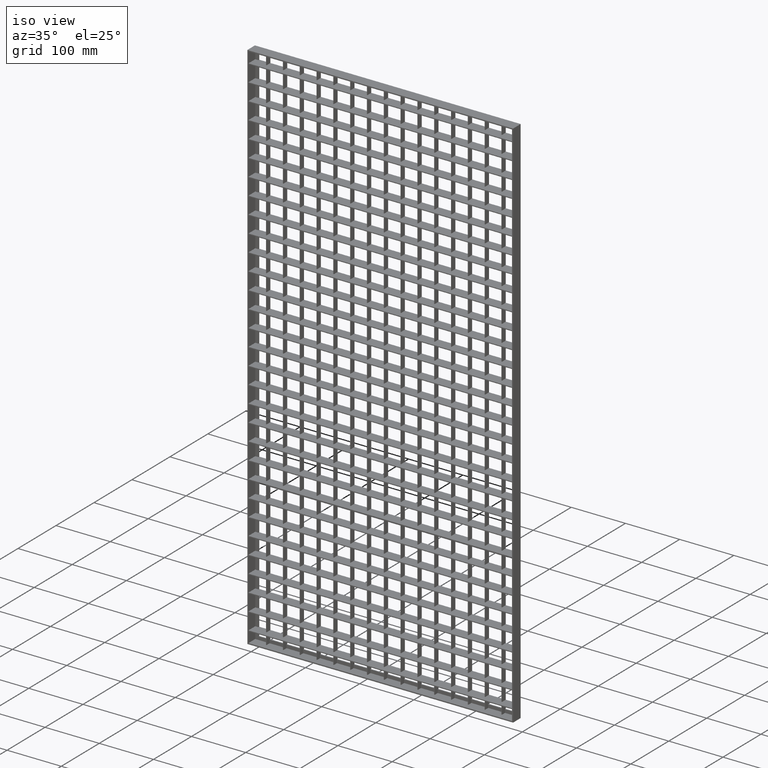
[diagram: clean part render]
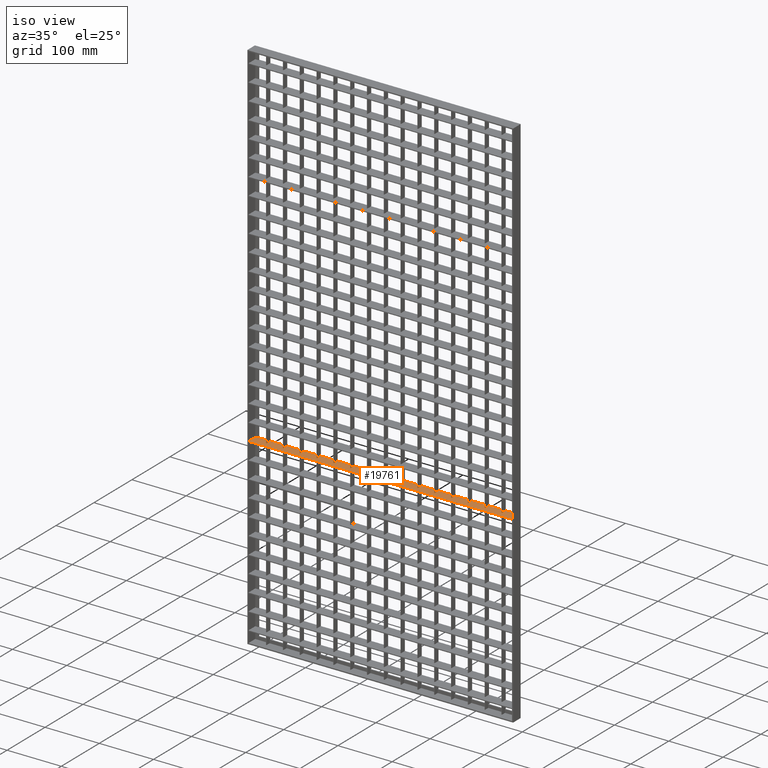
[diagram: same view with one face highlighted and labeled with its STEP entity id]
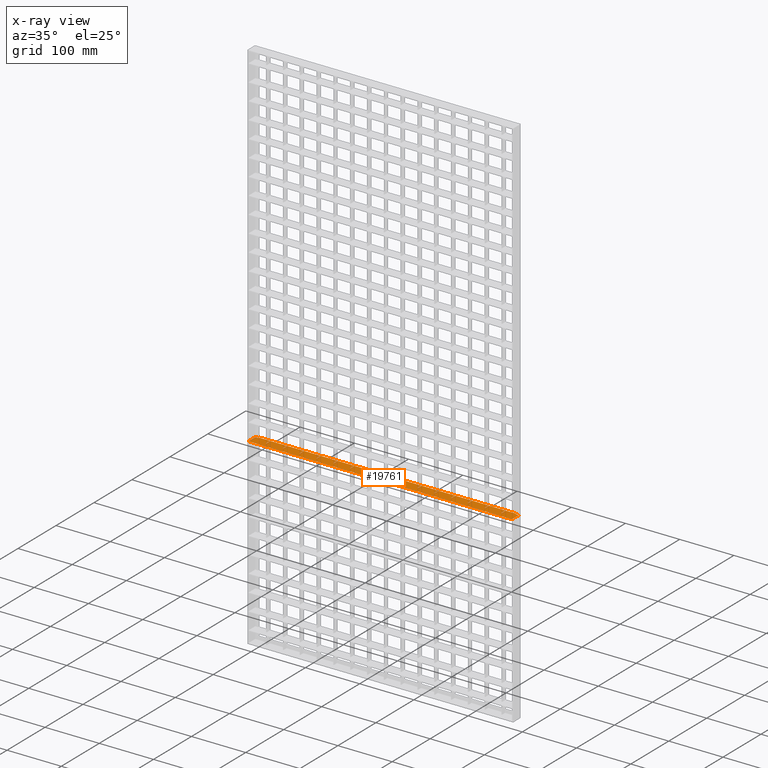
[diagram: x-ray of the same camera — body ghosted, the highlighted face saturated]
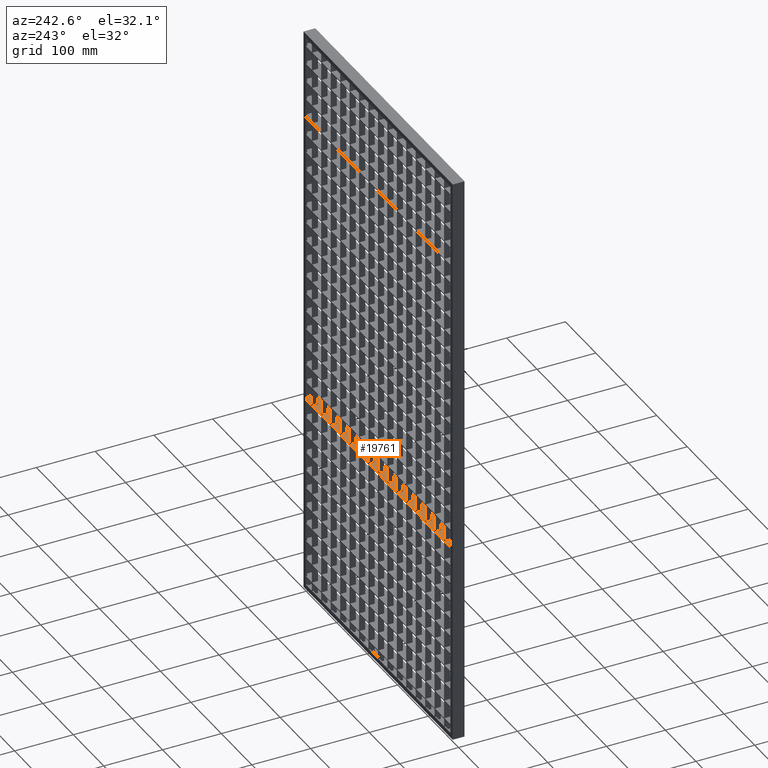
[diagram: same view with one face highlighted and labeled with its STEP entity id]
A machine part, iso view. The second image highlights one B-rep face of the part: STEP entity #19761.
The next image is the same camera in x-ray: the body ghosted, the highlighted face saturated — about 0% of this face is hidden behind the body in this view.
A second angle (auxiliary view) of the same face is appended — the face is thin or edge-on in the first view.
In plain terms, the highlighted planar face has unit normal (0, 0, -1).
Its self-contained STEP definition (entity closure, byte-faithful):
#49 = ORIENTED_EDGE ( 'NONE', *, *, #41829, .T. ) ;
#56 = ORIENTED_EDGE ( 'NONE', *, *, #2882, .F. ) ;
#94 = VERTEX_POINT ( 'NONE', #67276 ) ;
#197 = DIRECTION ( 'NONE',  ( -1.000000000000000000, -3.061616997868382600E-016, 0.0000000000000000000 ) ) ;
#408 = CARTESIAN_POINT ( 'NONE',  ( 508.0561711201315800, -9.999999999999849000, -651.7499999999997700 ) ) ;
#414 = VECTOR ( 'NONE', #57273, 1000.000000000000000 ) ;
#457 = VECTOR ( 'NONE', #65615, 1000.000000000000000 ) ;
#542 = ORIENTED_EDGE ( 'NONE', *, *, #64388, .T. ) ;
#579 = VECTOR ( 'NONE', #29431, 1000.000000000000000 ) ;
#656 = EDGE_CURVE ( 'NONE', #3270, #56879, #33934, .T. ) ;
#737 = CARTESIAN_POINT ( 'NONE',  ( 213.5000000000000300, -9.999999999999849000, -651.7499999999997700 ) ) ;
#844 = VECTOR ( 'NONE', #35367, 1000.000000000000000 ) ;
#906 = CARTESIAN_POINT ( 'NONE',  ( 400.4999999999999400, 10.00000000000012100, -651.7499999999997700 ) ) ;
#940 = CARTESIAN_POINT ( 'NONE',  ( 508.0561711201315800, 10.00000000000015500, -651.7499999999997700 ) ) ;
#1152 = CARTESIAN_POINT ( 'NONE',  ( 121.5000000000000000, 10.00000000000003700, -651.7499999999997700 ) ) ;
#1182 = DIRECTION ( 'NONE',  ( -1.000000000000000000, -3.061616997868382600E-016, 0.0000000000000000000 ) ) ;
#1608 = CARTESIAN_POINT ( 'NONE',  ( 276.4999999999999400, 1.504691907199150600E-015, -651.7499999999997700 ) ) ;
#1650 = DIRECTION ( 'NONE',  ( -1.000000000000000000, -3.061616997868382600E-016, 0.0000000000000000000 ) ) ;
#1669 = VERTEX_POINT ( 'NONE', #4351 ) ;
#1770 = VERTEX_POINT ( 'NONE', #5060 ) ;
#1832 = CARTESIAN_POINT ( 'NONE',  ( 508.0561711201315800, 10.00000000000015500, -651.7499999999997700 ) ) ;
#2134 = LINE ( 'NONE', #39005, #3844 ) ;
#2255 = ORIENTED_EDGE ( 'NONE', *, *, #6457, .F. ) ;
#2389 = ORIENTED_EDGE ( 'NONE', *, *, #54129, .T. ) ;
#2645 = VERTEX_POINT ( 'NONE', #7873 ) ;
#2682 = CARTESIAN_POINT ( 'NONE',  ( 338.5000000000000000, 1.604624756160052900E-015, -651.7499999999997700 ) ) ;
#2697 = VERTEX_POINT ( 'NONE', #57137 ) ;
#2770 = ORIENTED_EDGE ( 'NONE', *, *, #18818, .F. ) ;
#2882 = EDGE_CURVE ( 'NONE', #58044, #36544, #13924, .T. ) ;
#2937 = VERTEX_POINT ( 'NONE', #54906 ) ;
#2962 = CARTESIAN_POINT ( 'NONE',  ( 213.5000000000000000, 10.00000000000000200, -651.7499999999998900 ) ) ;
#3037 = CARTESIAN_POINT ( 'NONE',  ( 182.5000000000000000, -9.999999999999849000, -651.7499999999997700 ) ) ;
#3105 = CARTESIAN_POINT ( 'NONE',  ( 28.50000000000002500, 10.00000000000000700, -651.7499999999997700 ) ) ;
#3270 = VERTEX_POINT ( 'NONE', #19115 ) ;
#3499 = EDGE_CURVE ( 'NONE', #53414, #9156, #28377, .T. ) ;
#3586 = EDGE_CURVE ( 'NONE', #9834, #70583, #41275, .T. ) ;
#3686 = VECTOR ( 'NONE', #52085, 1000.000000000000000 ) ;
#3805 = CARTESIAN_POINT ( 'NONE',  ( 400.4999999999999400, 1.704557605120992000E-015, -651.7499999999997700 ) ) ;
#3844 = VECTOR ( 'NONE', #50285, 1000.000000000000000 ) ;
#3861 = ORIENTED_EDGE ( 'NONE', *, *, #57501, .F. ) ;
#4082 = ORIENTED_EDGE ( 'NONE', *, *, #7944, .T. ) ;
#4086 = VECTOR ( 'NONE', #63449, 1000.000000000000000 ) ;
#4249 = EDGE_CURVE ( 'NONE', #19711, #18649, #17971, .T. ) ;
#4254 = CARTESIAN_POINT ( 'NONE',  ( 152.4999999999999700, 1.734723475976807100E-015, -651.7499999999997700 ) ) ;
#4323 = EDGE_CURVE ( 'NONE', #36387, #65003, #54071, .T. ) ;
#4350 = LINE ( 'NONE', #50054, #43025 ) ;
#4351 = CARTESIAN_POINT ( 'NONE',  ( 482.0000000000001700, 10.00000000000000200, -651.7499999999997700 ) ) ;
#4388 = CARTESIAN_POINT ( 'NONE',  ( 508.0561711201315800, -1.214306433183765000E-014, -651.7499999999997700 ) ) ;
#4545 = EDGE_CURVE ( 'NONE', #43876, #16448, #7603, .T. ) ;
#4587 = VERTEX_POINT ( 'NONE', #55315 ) ;
#4767 = VECTOR ( 'NONE', #14662, 1000.000000000000000 ) ;
#4768 = DIRECTION ( 'NONE',  ( 0.0000000000000000000, 1.000000000000000000, 0.0000000000000000000 ) ) ;
#4980 = CARTESIAN_POINT ( 'NONE',  ( 245.5000000000000000, 1.734723475976807100E-015, -651.7499999999997700 ) ) ;
#5060 = CARTESIAN_POINT ( 'NONE',  ( 488.0000000000000600, -10.00000000000000500, -651.7499999999997700 ) ) ;
#5151 = CARTESIAN_POINT ( 'NONE',  ( 508.0561711201315800, -3.122502256758252800E-014, -651.7499999999997700 ) ) ;
#5252 = VECTOR ( 'NONE', #15541, 1000.000000000000000 ) ;
#5273 = LINE ( 'NONE', #16511, #50900 ) ;
#5381 = EDGE_CURVE ( 'NONE', #1770, #46114, #51427, .T. ) ;
#5401 = LINE ( 'NONE', #29801, #69891 ) ;
#5755 = DIRECTION ( 'NONE',  ( 0.0000000000000000000, 1.000000000000000000, 0.0000000000000000000 ) ) ;
#5880 = ORIENTED_EDGE ( 'NONE', *, *, #57708, .F. ) ;
#5925 = VERTEX_POINT ( 'NONE', #57547 ) ;
#5991 = VERTEX_POINT ( 'NONE', #29462 ) ;
#6221 = EDGE_CURVE ( 'NONE', #42467, #60410, #32332, .T. ) ;
#6393 = DIRECTION ( 'NONE',  ( 0.0000000000000000000, 0.0000000000000000000, -1.000000000000000000 ) ) ;
#6457 = EDGE_CURVE ( 'NONE', #35968, #30159, #70091, .T. ) ;
#6461 = LINE ( 'NONE', #67410, #28814 ) ;
#6496 = LINE ( 'NONE', #34945, #58089 ) ;
#6578 = LINE ( 'NONE', #36191, #23787 ) ;
#6874 = EDGE_CURVE ( 'NONE', #31549, #9834, #21908, .T. ) ;
#7119 = CARTESIAN_POINT ( 'NONE',  ( 275.4999999999999400, 2.229774192431455100E-015, -651.7499999999998900 ) ) ;
#7399 = CARTESIAN_POINT ( 'NONE',  ( 58.50000000000000000, 10.00000000000000200, -651.7499999999997700 ) ) ;
#7603 = LINE ( 'NONE', #12053, #18891 ) ;
#7717 = EDGE_CURVE ( 'NONE', #16448, #51883, #2134, .T. ) ;
#7873 = CARTESIAN_POINT ( 'NONE',  ( 369.5000000000000600, 7.872294426520972900E-016, -651.7499999999997700 ) ) ;
#7892 = ORIENTED_EDGE ( 'NONE', *, *, #54475, .T. ) ;
#7908 = VERTEX_POINT ( 'NONE', #39951 ) ;
#7944 = EDGE_CURVE ( 'NONE', #71323, #31109, #14159, .T. ) ;
#8235 = VERTEX_POINT ( 'NONE', #65878 ) ;
#8405 = DIRECTION ( 'NONE',  ( 0.0000000000000000000, -1.000000000000000000, 0.0000000000000000000 ) ) ;
#8762 = CARTESIAN_POINT ( 'NONE',  ( 2.000000000000003600, 8.000000000000001800, -651.7499999999997700 ) ) ;
#9156 = VERTEX_POINT ( 'NONE', #35441 ) ;
#9207 = CARTESIAN_POINT ( 'NONE',  ( 482.0000000000001100, 8.000000000000001800, -651.7499999999997700 ) ) ;
#9472 = DIRECTION ( 'NONE',  ( 1.000000000000000000, -3.061616997868381200E-016, 0.0000000000000000000 ) ) ;
#9539 = CARTESIAN_POINT ( 'NONE',  ( 461.5000000000000000, 2.229774192431455100E-015, -651.7499999999997700 ) ) ;
#9548 = VERTEX_POINT ( 'NONE', #23394 ) ;
#9561 = VECTOR ( 'NONE', #68708, 1000.000000000000000 ) ;
#9706 = ORIENTED_EDGE ( 'NONE', *, *, #15744, .T. ) ;
#9762 = LINE ( 'NONE', #66533, #40718 ) ;
#9798 = EDGE_CURVE ( 'NONE', #71241, #71149, #62011, .T. ) ;
#9834 = VERTEX_POINT ( 'NONE', #47608 ) ;
#9939 = DIRECTION ( 'NONE',  ( 1.000000000000000000, -3.061616997868381700E-016, 0.0000000000000000000 ) ) ;
#10023 = EDGE_CURVE ( 'NONE', #71149, #57748, #58475, .T. ) ;
#10396 = LINE ( 'NONE', #60735, #41351 ) ;
#10397 = CARTESIAN_POINT ( 'NONE',  ( 182.5000000000000000, 10.00000000000000200, -651.7499999999998900 ) ) ;
#10569 = LINE ( 'NONE', #51689, #18323 ) ;
#10654 = VECTOR ( 'NONE', #40883, 1000.000000000000000 ) ;
#11175 = LINE ( 'NONE', #31668, #67964 ) ;
#11252 = ORIENTED_EDGE ( 'NONE', *, *, #46448, .T. ) ;
#11351 = ORIENTED_EDGE ( 'NONE', *, *, #5381, .T. ) ;
#11572 = LINE ( 'NONE', #18864, #414 ) ;
#11573 = DIRECTION ( 'NONE',  ( -1.000000000000000000, -3.061616997868381700E-016, 0.0000000000000000000 ) ) ;
#11612 = LINE ( 'NONE', #47768, #27965 ) ;
#11929 = DIRECTION ( 'NONE',  ( -1.000000000000000000, 0.0000000000000000000, -0.0000000000000000000 ) ) ;
#11980 = CARTESIAN_POINT ( 'NONE',  ( 508.0561711201315800, 10.00000000000015500, -651.7499999999997700 ) ) ;
#12053 = CARTESIAN_POINT ( 'NONE',  ( 508.0561711201315800, 1.491862189340054100E-013, -651.7499999999997700 ) ) ;
#12121 = VECTOR ( 'NONE', #48372, 1000.000000000000000 ) ;
#12226 = ORIENTED_EDGE ( 'NONE', *, *, #55352, .T. ) ;
#12233 = CARTESIAN_POINT ( 'NONE',  ( 244.5000000000000000, 8.411980314596704500E-016, -651.7499999999997700 ) ) ;
#12334 = CARTESIAN_POINT ( 'NONE',  ( 183.5000000000000600, 10.00000000000005500, -651.7499999999997700 ) ) ;
#12458 = LINE ( 'NONE', #408, #67502 ) ;
#12467 = LINE ( 'NONE', #13581, #68328 ) ;
#12667 = ORIENTED_EDGE ( 'NONE', *, *, #14696, .T. ) ;
#12709 = CARTESIAN_POINT ( 'NONE',  ( 462.5000000000000000, 10.00000000000014000, -651.7499999999997700 ) ) ;
#12710 = CARTESIAN_POINT ( 'NONE',  ( 2.000000000000003600, -10.00000000000000000, -651.7499999999997700 ) ) ;
#12767 = LINE ( 'NONE', #940, #46262 ) ;
#12937 = CARTESIAN_POINT ( 'NONE',  ( 508.0561711201315800, -6.938893903907228400E-014, -651.7499999999997700 ) ) ;
#13001 = DIRECTION ( 'NONE',  ( 0.0000000000000000000, -1.000000000000000000, 0.0000000000000000000 ) ) ;
#13094 = EDGE_CURVE ( 'NONE', #65624, #48630, #42959, .T. ) ;
#13421 = CARTESIAN_POINT ( 'NONE',  ( 462.5000000000000000, -9.999999999999849000, -651.7499999999997700 ) ) ;
#13549 = VECTOR ( 'NONE', #39194, 1000.000000000000000 ) ;
#13581 = CARTESIAN_POINT ( 'NONE',  ( 508.0561711201315800, 1.006139616066548100E-013, -651.7499999999997700 ) ) ;
#13882 = ORIENTED_EDGE ( 'NONE', *, *, #13094, .F. ) ;
#13894 = ORIENTED_EDGE ( 'NONE', *, *, #45737, .F. ) ;
#13924 = LINE ( 'NONE', #5151, #5252 ) ;
#14155 = EDGE_CURVE ( 'NONE', #2645, #94, #57419, .T. ) ;
#14159 = LINE ( 'NONE', #62806, #43337 ) ;
#14223 = CARTESIAN_POINT ( 'NONE',  ( 27.49999999999996800, 2.058324740811253300E-015, -651.7499999999997700 ) ) ;
#14298 = DIRECTION ( 'NONE',  ( 1.000000000000000000, 0.0000000000000000000, 0.0000000000000000000 ) ) ;
#14365 = DIRECTION ( 'NONE',  ( -1.000000000000000000, -3.061616997868381700E-016, 0.0000000000000000000 ) ) ;
#14630 = VECTOR ( 'NONE', #9472, 1000.000000000000000 ) ;
#14662 = DIRECTION ( 'NONE',  ( 0.0000000000000000000, -1.000000000000000000, 0.0000000000000000000 ) ) ;
#14683 = LINE ( 'NONE', #60362, #43878 ) ;
#14696 = EDGE_CURVE ( 'NONE', #16843, #31549, #48707, .T. ) ;
#14809 = CARTESIAN_POINT ( 'NONE',  ( 368.5000000000000600, -9.999999999999849000, -651.7499999999997700 ) ) ;
#14915 = VECTOR ( 'NONE', #34669, 1000.000000000000000 ) ;
#14999 = VECTOR ( 'NONE', #39768, 1000.000000000000000 ) ;
#15020 = CARTESIAN_POINT ( 'NONE',  ( 89.49999999999997200, 1.958391891850345000E-015, -651.7499999999997700 ) ) ;
#15053 = CARTESIAN_POINT ( 'NONE',  ( 182.4999999999999400, 9.411308804205788300E-016, -651.7499999999997700 ) ) ;
#15332 = CARTESIAN_POINT ( 'NONE',  ( 151.4999999999999700, 1.858459042889448800E-015, -651.7499999999997700 ) ) ;
#15447 = CARTESIAN_POINT ( 'NONE',  ( 213.4999999999999700, 1.758526193928528200E-015, -651.7499999999997700 ) ) ;
#15541 = DIRECTION ( 'NONE',  ( 1.000000000000000000, -3.061616997868381700E-016, 0.0000000000000000000 ) ) ;
#15744 = EDGE_CURVE ( 'NONE', #29723, #60359, #12467, .T. ) ;
#15875 = EDGE_CURVE ( 'NONE', #30159, #3270, #70875, .T. ) ;
#15971 = EDGE_CURVE ( 'NONE', #40848, #46114, #21855, .T. ) ;
#16185 = ORIENTED_EDGE ( 'NONE', *, *, #4323, .F. ) ;
#16431 = CARTESIAN_POINT ( 'NONE',  ( 461.5000000000000000, -9.999999999999849000, -651.7499999999997700 ) ) ;
#16448 = VERTEX_POINT ( 'NONE', #14223 ) ;
#16511 = CARTESIAN_POINT ( 'NONE',  ( 508.0561711201315800, -6.071532165918824800E-014, -651.7499999999997700 ) ) ;
#16843 = VERTEX_POINT ( 'NONE', #1152 ) ;
#16855 = VERTEX_POINT ( 'NONE', #906 ) ;
#16886 = CARTESIAN_POINT ( 'NONE',  ( 7.999999999999996400, 8.000000000000001800, -651.7499999999997700 ) ) ;
#17221 = CARTESIAN_POINT ( 'NONE',  ( 399.4999999999999400, 2.229774192431455100E-015, -651.7499999999997700 ) ) ;
#17291 = CARTESIAN_POINT ( 'NONE',  ( 27.49999999999999600, 10.00000000000000200, -651.7499999999997700 ) ) ;
#17397 = ORIENTED_EDGE ( 'NONE', *, *, #54026, .T. ) ;
#17419 = ORIENTED_EDGE ( 'NONE', *, *, #59644, .T. ) ;
#17570 = LINE ( 'NONE', #23450, #14999 ) ;
#17712 = VECTOR ( 'NONE', #49097, 1000.000000000000000 ) ;
#17906 = DIRECTION ( 'NONE',  ( -1.000000000000000000, -3.061616997868381200E-016, 0.0000000000000000000 ) ) ;
#17971 = LINE ( 'NONE', #12937, #42865 ) ;
#18118 = LINE ( 'NONE', #29133, #33550 ) ;
#18323 = VECTOR ( 'NONE', #57919, 1000.000000000000000 ) ;
#18363 = DIRECTION ( 'NONE',  ( -1.000000000000000000, -3.061616997868382600E-016, 0.0000000000000000000 ) ) ;
#18382 = VERTEX_POINT ( 'NONE', #9539 ) ;
#18527 = CARTESIAN_POINT ( 'NONE',  ( 431.5000000000000000, -9.999999999999849000, -651.7499999999997700 ) ) ;
#18649 = VERTEX_POINT ( 'NONE', #1608 ) ;
#18818 = EDGE_CURVE ( 'NONE', #42467, #47853, #31281, .T. ) ;
#18864 = CARTESIAN_POINT ( 'NONE',  ( 338.5000000000000000, -9.999999999999849000, -651.7499999999997700 ) ) ;
#18891 = VECTOR ( 'NONE', #11573, 1000.000000000000000 ) ;
#18968 = DIRECTION ( 'NONE',  ( 0.0000000000000000000, 1.000000000000000000, 0.0000000000000000000 ) ) ;
#19115 = CARTESIAN_POINT ( 'NONE',  ( 7.999999999999996400, 8.000000000000001800, -651.7499999999997700 ) ) ;
#19132 = DIRECTION ( 'NONE',  ( -1.000000000000000000, -3.061616997868381200E-016, 0.0000000000000000000 ) ) ;
#19172 = CARTESIAN_POINT ( 'NONE',  ( 337.5000000000000000, 2.229774192431455100E-015, -651.7499999999998900 ) ) ;
#19276 = VERTEX_POINT ( 'NONE', #3105 ) ;
#19528 = VECTOR ( 'NONE', #60279, 1000.000000000000000 ) ;
#19640 = EDGE_CURVE ( 'NONE', #68021, #19276, #28583, .T. ) ;
#19689 = CARTESIAN_POINT ( 'NONE',  ( 508.0561711201315800, 10.00000000000015500, -651.7499999999997700 ) ) ;
#19711 = VERTEX_POINT ( 'NONE', #7119 ) ;
#19728 = ORIENTED_EDGE ( 'NONE', *, *, #24899, .F. ) ;
#19761 = ADVANCED_FACE ( 'NONE', ( #48287 ), #22755, .F. ) ;
#20169 = VECTOR ( 'NONE', #9939, 1000.000000000000000 ) ;
#20243 = VECTOR ( 'NONE', #30711, 1000.000000000000000 ) ;
#20360 = CARTESIAN_POINT ( 'NONE',  ( 488.0000000000000600, 8.000000000000001800, -651.7499999999997700 ) ) ;
#20697 = ORIENTED_EDGE ( 'NONE', *, *, #64916, .T. ) ;
#20794 = DIRECTION ( 'NONE',  ( 0.0000000000000000000, 1.000000000000000000, 0.0000000000000000000 ) ) ;
#21066 = ORIENTED_EDGE ( 'NONE', *, *, #58885, .T. ) ;
#21184 = VECTOR ( 'NONE', #62288, 1000.000000000000000 ) ;
#21467 = CARTESIAN_POINT ( 'NONE',  ( 151.4999999999999700, -9.999999999999849000, -651.7499999999997700 ) ) ;
#21574 = DIRECTION ( 'NONE',  ( -1.000000000000000000, -3.061616997868382600E-016, 0.0000000000000000000 ) ) ;
#21608 = EDGE_CURVE ( 'NONE', #50150, #71323, #38632, .T. ) ;
#21636 = ORIENTED_EDGE ( 'NONE', *, *, #15971, .F. ) ;
#21665 = ORIENTED_EDGE ( 'NONE', *, *, #61967, .T. ) ;
#21712 = VECTOR ( 'NONE', #61930, 1000.000000000000000 ) ;
#21820 = DIRECTION ( 'NONE',  ( -1.000000000000000000, -3.061616997868382600E-016, 0.0000000000000000000 ) ) ;
#21855 = LINE ( 'NONE', #59914, #35635 ) ;
#21908 = LINE ( 'NONE', #48470, #29640 ) ;
#21954 = CARTESIAN_POINT ( 'NONE',  ( 508.0561711201315800, 10.00000000000015500, -651.7499999999997700 ) ) ;
#22333 = LINE ( 'NONE', #21954, #46390 ) ;
#22578 = EDGE_CURVE ( 'NONE', #63887, #4587, #33277, .T. ) ;
#22666 = CARTESIAN_POINT ( 'NONE',  ( 151.5000000000000000, 10.00000000000000200, -651.7499999999998900 ) ) ;
#22755 = PLANE ( 'NONE',  #70855 ) ;
#23187 = CARTESIAN_POINT ( 'NONE',  ( 89.50000000000000000, 10.00000000000000200, -651.7499999999997700 ) ) ;
#23219 = LINE ( 'NONE', #68307, #844 ) ;
#23292 = VERTEX_POINT ( 'NONE', #24539 ) ;
#23310 = CARTESIAN_POINT ( 'NONE',  ( 121.5000000000000000, 1.734723475976807100E-015, -651.7499999999997700 ) ) ;
#23394 = CARTESIAN_POINT ( 'NONE',  ( 306.5000000000000000, 2.229774192431455100E-015, -651.7499999999998900 ) ) ;
#23450 = CARTESIAN_POINT ( 'NONE',  ( 508.0561711201315800, 1.110223024625156500E-013, -651.7499999999997700 ) ) ;
#23633 = ORIENTED_EDGE ( 'NONE', *, *, #28353, .F. ) ;
#23771 = CARTESIAN_POINT ( 'NONE',  ( 508.0561711201315800, 10.00000000000015500, -651.7499999999997700 ) ) ;
#23787 = VECTOR ( 'NONE', #14365, 1000.000000000000000 ) ;
#23794 = CARTESIAN_POINT ( 'NONE',  ( 462.5000000000000000, 1.804490454081884800E-015, -651.7499999999997700 ) ) ;
#24391 = CARTESIAN_POINT ( 'NONE',  ( 275.4999999999999400, 10.00000000000008300, -651.7499999999997700 ) ) ;
#24471 = VECTOR ( 'NONE', #52322, 1000.000000000000000 ) ;
#24489 = DIRECTION ( 'NONE',  ( 1.000000000000000000, -3.061616997868381200E-016, 0.0000000000000000000 ) ) ;
#24539 = CARTESIAN_POINT ( 'NONE',  ( 399.4999999999999400, 10.00000000000012100, -651.7499999999997700 ) ) ;
#24871 = ORIENTED_EDGE ( 'NONE', *, *, #39841, .T. ) ;
#24899 = EDGE_CURVE ( 'NONE', #18649, #7908, #14683, .T. ) ;
#25035 = CARTESIAN_POINT ( 'NONE',  ( 431.5000000000000000, 8.871622916130333800E-016, -651.7499999999997700 ) ) ;
#25777 = DIRECTION ( 'NONE',  ( -1.000000000000000000, -3.061616997868382600E-016, 0.0000000000000000000 ) ) ;
#26079 = ORIENTED_EDGE ( 'NONE', *, *, #61324, .T. ) ;
#27290 = DIRECTION ( 'NONE',  ( 1.000000000000000000, -3.061616997868381200E-016, 0.0000000000000000000 ) ) ;
#27652 = LINE ( 'NONE', #16431, #48249 ) ;
#27774 = CARTESIAN_POINT ( 'NONE',  ( 8.000000000000007100, 10.00000000000000200, -651.7499999999997700 ) ) ;
#27965 = VECTOR ( 'NONE', #53300, 1000.000000000000000 ) ;
#28353 = EDGE_CURVE ( 'NONE', #57731, #60410, #11572, .T. ) ;
#28377 = LINE ( 'NONE', #66310, #45627 ) ;
#28583 = LINE ( 'NONE', #54727, #51775 ) ;
#28652 = DIRECTION ( 'NONE',  ( 0.0000000000000000000, -1.000000000000000000, 0.0000000000000000000 ) ) ;
#28814 = VECTOR ( 'NONE', #51299, 1000.000000000000000 ) ;
#29068 = EDGE_CURVE ( 'NONE', #19276, #43876, #10569, .T. ) ;
#29133 = CARTESIAN_POINT ( 'NONE',  ( 508.0561711201315800, 10.00000000000015500, -651.7499999999997700 ) ) ;
#29369 = ORIENTED_EDGE ( 'NONE', *, *, #7717, .T. ) ;
#29431 = DIRECTION ( 'NONE',  ( -1.000000000000000000, -3.061616997868382600E-016, 0.0000000000000000000 ) ) ;
#29462 = CARTESIAN_POINT ( 'NONE',  ( 90.50000000000002800, 1.734723475976807100E-015, -651.7499999999997700 ) ) ;
#29640 = VECTOR ( 'NONE', #59781, 1000.000000000000000 ) ;
#29656 = ORIENTED_EDGE ( 'NONE', *, *, #33022, .F. ) ;
#29723 = VERTEX_POINT ( 'NONE', #57819 ) ;
#29801 = CARTESIAN_POINT ( 'NONE',  ( 275.4999999999999400, -9.999999999999849000, -651.7499999999997700 ) ) ;
#29854 = DIRECTION ( 'NONE',  ( -1.000000000000000000, -3.061616997868382600E-016, 0.0000000000000000000 ) ) ;
#29906 = VERTEX_POINT ( 'NONE', #32094 ) ;
#30159 = VERTEX_POINT ( 'NONE', #61136 ) ;
#30305 = ORIENTED_EDGE ( 'NONE', *, *, #29068, .T. ) ;
#30635 = CARTESIAN_POINT ( 'NONE',  ( 482.0000000000001100, 8.000000000000001800, -651.7499999999997700 ) ) ;
#30711 = DIRECTION ( 'NONE',  ( -1.000000000000000000, -3.061616997868382600E-016, 0.0000000000000000000 ) ) ;
#30973 = CARTESIAN_POINT ( 'NONE',  ( 508.0561711201315800, 1.301042606982605300E-013, -651.7499999999997700 ) ) ;
#31037 = DIRECTION ( 'NONE',  ( 0.0000000000000000000, 1.000000000000000000, 0.0000000000000000000 ) ) ;
#31109 = VERTEX_POINT ( 'NONE', #53608 ) ;
#31198 = VECTOR ( 'NONE', #1650, 1000.000000000000000 ) ;
#31281 = LINE ( 'NONE', #14809, #24471 ) ;
#31549 = VERTEX_POINT ( 'NONE', #23310 ) ;
#31668 = CARTESIAN_POINT ( 'NONE',  ( 183.5000000000000000, -9.999999999999849000, -651.7499999999997700 ) ) ;
#31991 = CARTESIAN_POINT ( 'NONE',  ( 508.0561711201315800, -2.255140518769849200E-014, -651.7499999999997700 ) ) ;
#32061 = LINE ( 'NONE', #1832, #21712 ) ;
#32094 = CARTESIAN_POINT ( 'NONE',  ( 431.5000000000000000, 10.00000000000013000, -651.7499999999997700 ) ) ;
#32130 = ORIENTED_EDGE ( 'NONE', *, *, #22578, .T. ) ;
#32232 = VECTOR ( 'NONE', #55302, 1000.000000000000000 ) ;
#32332 = LINE ( 'NONE', #43307, #17712 ) ;
#32761 = CARTESIAN_POINT ( 'NONE',  ( 120.5000000000000000, 10.00000000000000200, -651.7499999999998900 ) ) ;
#32888 = EDGE_CURVE ( 'NONE', #23292, #58044, #11612, .T. ) ;
#32967 = CARTESIAN_POINT ( 'NONE',  ( 59.50000000000005000, 10.00000000000001800, -651.7499999999997700 ) ) ;
#33022 = EDGE_CURVE ( 'NONE', #1770, #35968, #12458, .T. ) ;
#33099 = DIRECTION ( 'NONE',  ( 0.0000000000000000000, -1.000000000000000000, 0.0000000000000000000 ) ) ;
#33242 = DIRECTION ( 'NONE',  ( 0.0000000000000000000, 1.000000000000000000, 0.0000000000000000000 ) ) ;
#33277 = LINE ( 'NONE', #40709, #579 ) ;
#33330 = VERTEX_POINT ( 'NONE', #46044 ) ;
#33550 = VECTOR ( 'NONE', #18363, 1000.000000000000000 ) ;
#33811 = CARTESIAN_POINT ( 'NONE',  ( 508.0561711201315800, -9.999999999999849000, -651.7499999999997700 ) ) ;
#33934 = LINE ( 'NONE', #16886, #32232 ) ;
#33947 = EDGE_CURVE ( 'NONE', #63887, #19711, #5401, .T. ) ;
#34057 = ORIENTED_EDGE ( 'NONE', *, *, #71095, .T. ) ;
#34165 = VERTEX_POINT ( 'NONE', #4254 ) ;
#34473 = VERTEX_POINT ( 'NONE', #67690 ) ;
#34669 = DIRECTION ( 'NONE',  ( -1.000000000000000000, -3.061616997868382600E-016, 0.0000000000000000000 ) ) ;
#34889 = CARTESIAN_POINT ( 'NONE',  ( 508.0561711201315800, 10.00000000000015500, -651.7499999999997700 ) ) ;
#34945 = CARTESIAN_POINT ( 'NONE',  ( 508.0561711201315800, 10.00000000000015500, -651.7499999999997700 ) ) ;
#35305 = VECTOR ( 'NONE', #29854, 1000.000000000000000 ) ;
#35367 = DIRECTION ( 'NONE',  ( 1.000000000000000000, -3.061616997868381200E-016, 0.0000000000000000000 ) ) ;
#35441 = CARTESIAN_POINT ( 'NONE',  ( 307.5000000000000000, 10.00000000000009400, -651.7499999999997700 ) ) ;
#35635 = VECTOR ( 'NONE', #70482, 1000.000000000000000 ) ;
#35701 = LINE ( 'NONE', #66321, #457 ) ;
#35846 = DIRECTION ( 'NONE',  ( 0.0000000000000000000, 1.000000000000000000, 0.0000000000000000000 ) ) ;
#35898 = VECTOR ( 'NONE', #20794, 1000.000000000000000 ) ;
#35968 = VERTEX_POINT ( 'NONE', #64289 ) ;
#36035 = EDGE_CURVE ( 'NONE', #18382, #36387, #46838, .T. ) ;
#36080 = VECTOR ( 'NONE', #69423, 1000.000000000000000 ) ;
#36191 = CARTESIAN_POINT ( 'NONE',  ( 508.0561711201315800, 1.387778780781445700E-013, -651.7499999999997700 ) ) ;
#36222 = ORIENTED_EDGE ( 'NONE', *, *, #10023, .F. ) ;
#36387 = VERTEX_POINT ( 'NONE', #23794 ) ;
#36474 = ORIENTED_EDGE ( 'NONE', *, *, #44442, .T. ) ;
#36499 = ORIENTED_EDGE ( 'NONE', *, *, #33947, .F. ) ;
#36544 = VERTEX_POINT ( 'NONE', #3805 ) ;
#36670 = VERTEX_POINT ( 'NONE', #49219 ) ;
#36696 = LINE ( 'NONE', #50728, #21184 ) ;
#36795 = CARTESIAN_POINT ( 'NONE',  ( 430.5000000000000000, -9.999999999999849000, -651.7499999999997700 ) ) ;
#36998 = CARTESIAN_POINT ( 'NONE',  ( 58.50000000000000000, -9.999999999999849000, -651.7499999999997700 ) ) ;
#37353 = LINE ( 'NONE', #45275, #38263 ) ;
#37439 = CARTESIAN_POINT ( 'NONE',  ( 508.0561711201315800, 8.153200337090993300E-014, -651.7499999999997700 ) ) ;
#37451 = LINE ( 'NONE', #19689, #20243 ) ;
#37492 = DIRECTION ( 'NONE',  ( 1.000000000000000000, -3.061616997868381700E-016, 0.0000000000000000000 ) ) ;
#37574 = VECTOR ( 'NONE', #58597, 1000.000000000000000 ) ;
#37635 = ORIENTED_EDGE ( 'NONE', *, *, #43909, .T. ) ;
#37659 = CARTESIAN_POINT ( 'NONE',  ( 368.5000000000000600, 10.00000000000011200, -651.7499999999997700 ) ) ;
#37928 = EDGE_CURVE ( 'NONE', #59035, #33330, #62930, .T. ) ;
#37977 = VERTEX_POINT ( 'NONE', #32967 ) ;
#38035 = VECTOR ( 'NONE', #70671, 1000.000000000000000 ) ;
#38263 = VECTOR ( 'NONE', #17906, 1000.000000000000000 ) ;
#38510 = CARTESIAN_POINT ( 'NONE',  ( 508.0561711201315800, 10.00000000000015500, -651.7499999999997700 ) ) ;
#38632 = LINE ( 'NONE', #37439, #36080 ) ;
#38657 = DIRECTION ( 'NONE',  ( 0.0000000000000000000, 1.000000000000000000, 0.0000000000000000000 ) ) ;
#38683 = ORIENTED_EDGE ( 'NONE', *, *, #55284, .T. ) ;
#39005 = CARTESIAN_POINT ( 'NONE',  ( 27.49999999999996800, -9.999999999999849000, -651.7499999999997700 ) ) ;
#39165 = CARTESIAN_POINT ( 'NONE',  ( 430.5000000000000000, 2.229774192431455100E-015, -651.7499999999997700 ) ) ;
#39194 = DIRECTION ( 'NONE',  ( 0.0000000000000000000, 1.000000000000000000, 0.0000000000000000000 ) ) ;
#39297 = EDGE_CURVE ( 'NONE', #70583, #8235, #12767, .T. ) ;
#39768 = DIRECTION ( 'NONE',  ( -1.000000000000000000, -3.061616997868381200E-016, 0.0000000000000000000 ) ) ;
#39841 = EDGE_CURVE ( 'NONE', #5991, #68807, #68557, .T. ) ;
#39951 = CARTESIAN_POINT ( 'NONE',  ( 276.4999999999999400, 10.00000000000008300, -651.7499999999997700 ) ) ;
#39994 = ORIENTED_EDGE ( 'NONE', *, *, #67206, .T. ) ;
#40027 = LINE ( 'NONE', #64645, #4767 ) ;
#40113 = CARTESIAN_POINT ( 'NONE',  ( 430.5000000000000000, 10.00000000000013000, -651.7499999999997700 ) ) ;
#40432 = ORIENTED_EDGE ( 'NONE', *, *, #64091, .T. ) ;
#40622 = ORIENTED_EDGE ( 'NONE', *, *, #3586, .T. ) ;
#40696 = ORIENTED_EDGE ( 'NONE', *, *, #4249, .F. ) ;
#40709 = CARTESIAN_POINT ( 'NONE',  ( 508.0561711201315800, 10.00000000000015500, -651.7499999999997700 ) ) ;
#40718 = VECTOR ( 'NONE', #197, 1000.000000000000000 ) ;
#40848 = VERTEX_POINT ( 'NONE', #9207 ) ;
#40883 = DIRECTION ( 'NONE',  ( -1.000000000000000000, -3.061616997868382600E-016, 0.0000000000000000000 ) ) ;
#41177 = VECTOR ( 'NONE', #18968, 1000.000000000000000 ) ;
#41275 = LINE ( 'NONE', #67832, #43871 ) ;
#41351 = VECTOR ( 'NONE', #33099, 1000.000000000000000 ) ;
#41527 = CARTESIAN_POINT ( 'NONE',  ( 488.0000000000000600, -9.999999999999849000, -651.7499999999997700 ) ) ;
#41829 = EDGE_CURVE ( 'NONE', #57489, #16843, #9762, .T. ) ;
#41856 = LINE ( 'NONE', #737, #13549 ) ;
#42123 = EDGE_CURVE ( 'NONE', #60359, #53052, #45831, .T. ) ;
#42467 = VERTEX_POINT ( 'NONE', #37659 ) ;
#42667 = ORIENTED_EDGE ( 'NONE', *, *, #9798, .F. ) ;
#42789 = CARTESIAN_POINT ( 'NONE',  ( 368.5000000000000600, 2.229774192431455100E-015, -651.7499999999998900 ) ) ;
#42805 = EDGE_CURVE ( 'NONE', #55532, #49214, #32061, .T. ) ;
#42865 = VECTOR ( 'NONE', #24489, 1000.000000000000000 ) ;
#42941 = EDGE_CURVE ( 'NONE', #1669, #65003, #65591, .T. ) ;
#42959 = LINE ( 'NONE', #55757, #61061 ) ;
#43025 = VECTOR ( 'NONE', #28652, 1000.000000000000000 ) ;
#43118 = CARTESIAN_POINT ( 'NONE',  ( 338.5000000000000000, 10.00000000000010300, -651.7499999999997700 ) ) ;
#43229 = ORIENTED_EDGE ( 'NONE', *, *, #62381, .T. ) ;
#43307 = CARTESIAN_POINT ( 'NONE',  ( 508.0561711201315800, 10.00000000000015500, -651.7499999999997700 ) ) ;
#43337 = VECTOR ( 'NONE', #35846, 1000.000000000000000 ) ;
#43474 = EDGE_CURVE ( 'NONE', #57748, #29906, #51716, .T. ) ;
#43747 = VERTEX_POINT ( 'NONE', #15332 ) ;
#43871 = VECTOR ( 'NONE', #45944, 1000.000000000000000 ) ;
#43876 = VERTEX_POINT ( 'NONE', #50372 ) ;
#43878 = VECTOR ( 'NONE', #5755, 1000.000000000000000 ) ;
#43909 = EDGE_CURVE ( 'NONE', #37977, #2937, #10396, .T. ) ;
#44145 = CARTESIAN_POINT ( 'NONE',  ( 121.5000000000000000, -9.999999999999849000, -651.7499999999997700 ) ) ;
#44442 = EDGE_CURVE ( 'NONE', #65624, #9156, #22333, .T. ) ;
#45017 = ORIENTED_EDGE ( 'NONE', *, *, #58570, .F. ) ;
#45275 = CARTESIAN_POINT ( 'NONE',  ( 508.0561711201315800, 9.194034422677077600E-014, -651.7499999999997700 ) ) ;
#45291 = ORIENTED_EDGE ( 'NONE', *, *, #42941, .T. ) ;
#45627 = VECTOR ( 'NONE', #55435, 1000.000000000000000 ) ;
#45737 = EDGE_CURVE ( 'NONE', #36544, #16855, #65085, .T. ) ;
#45831 = LINE ( 'NONE', #3037, #3686 ) ;
#45944 = DIRECTION ( 'NONE',  ( 0.0000000000000000000, 1.000000000000000000, 0.0000000000000000000 ) ) ;
#45950 = VECTOR ( 'NONE', #33242, 1000.000000000000000 ) ;
#45978 = ORIENTED_EDGE ( 'NONE', *, *, #46556, .T. ) ;
#46044 = CARTESIAN_POINT ( 'NONE',  ( 214.5000000000000300, 1.734723475976807100E-015, -651.7499999999997700 ) ) ;
#46114 = VERTEX_POINT ( 'NONE', #20360 ) ;
#46262 = VECTOR ( 'NONE', #1182, 1000.000000000000000 ) ;
#46320 = VERTEX_POINT ( 'NONE', #23187 ) ;
#46390 = VECTOR ( 'NONE', #60415, 1000.000000000000000 ) ;
#46448 = EDGE_CURVE ( 'NONE', #51883, #56879, #6496, .T. ) ;
#46556 = EDGE_CURVE ( 'NONE', #8235, #5991, #40027, .T. ) ;
#46838 = LINE ( 'NONE', #4388, #20169 ) ;
#46863 = ORIENTED_EDGE ( 'NONE', *, *, #68798, .F. ) ;
#47608 = CARTESIAN_POINT ( 'NONE',  ( 120.5000000000000000, 1.041063729381511900E-015, -651.7499999999997700 ) ) ;
#47768 = CARTESIAN_POINT ( 'NONE',  ( 399.4999999999999400, -9.999999999999849000, -651.7499999999997700 ) ) ;
#47853 = VERTEX_POINT ( 'NONE', #42789 ) ;
#48240 = VECTOR ( 'NONE', #70684, 1000.000000000000000 ) ;
#48249 = VECTOR ( 'NONE', #60159, 1000.000000000000000 ) ;
#48287 = FACE_OUTER_BOUND ( 'NONE', #57799, .T. ) ;
#48372 = DIRECTION ( 'NONE',  ( 0.0000000000000000000, -1.000000000000000000, 0.0000000000000000000 ) ) ;
#48470 = CARTESIAN_POINT ( 'NONE',  ( 508.0561711201315800, 1.196959198423996900E-013, -651.7499999999997700 ) ) ;
#48630 = VERTEX_POINT ( 'NONE', #19172 ) ;
#48707 = LINE ( 'NONE', #44145, #19528 ) ;
#48786 = ORIENTED_EDGE ( 'NONE', *, *, #14155, .F. ) ;
#48988 = ORIENTED_EDGE ( 'NONE', *, *, #32888, .F. ) ;
#49097 = DIRECTION ( 'NONE',  ( -1.000000000000000000, -3.061616997868382600E-016, 0.0000000000000000000 ) ) ;
#49214 = VERTEX_POINT ( 'NONE', #12334 ) ;
#49219 = CARTESIAN_POINT ( 'NONE',  ( 152.5000000000000300, 10.00000000000004600, -651.7499999999997700 ) ) ;
#50054 = CARTESIAN_POINT ( 'NONE',  ( 306.5000000000000000, -9.999999999999849000, -651.7499999999997700 ) ) ;
#50150 = VERTEX_POINT ( 'NONE', #4980 ) ;
#50285 = DIRECTION ( 'NONE',  ( 0.0000000000000000000, 1.000000000000000000, 0.0000000000000000000 ) ) ;
#50372 = CARTESIAN_POINT ( 'NONE',  ( 28.49999999999997200, 1.734723475976807100E-015, -651.7499999999997700 ) ) ;
#50728 = CARTESIAN_POINT ( 'NONE',  ( 89.50000000000002800, -9.999999999999849000, -651.7499999999997700 ) ) ;
#50900 = VECTOR ( 'NONE', #27290, 1000.000000000000000 ) ;
#51047 = LINE ( 'NONE', #38510, #14915 ) ;
#51299 = DIRECTION ( 'NONE',  ( 0.0000000000000000000, -1.000000000000000000, 0.0000000000000000000 ) ) ;
#51427 = LINE ( 'NONE', #41527, #4086 ) ;
#51689 = CARTESIAN_POINT ( 'NONE',  ( 28.49999999999997200, -9.999999999999849000, -651.7499999999997700 ) ) ;
#51716 = LINE ( 'NONE', #18527, #9561 ) ;
#51738 = LINE ( 'NONE', #30635, #12121 ) ;
#51775 = VECTOR ( 'NONE', #21820, 1000.000000000000000 ) ;
#51791 = ORIENTED_EDGE ( 'NONE', *, *, #3499, .F. ) ;
#51809 = ORIENTED_EDGE ( 'NONE', *, *, #36035, .F. ) ;
#51832 = LINE ( 'NONE', #23771, #31198 ) ;
#51883 = VERTEX_POINT ( 'NONE', #17291 ) ;
#52015 = DIRECTION ( 'NONE',  ( -1.000000000000000000, -3.061616997868382600E-016, 0.0000000000000000000 ) ) ;
#52085 = DIRECTION ( 'NONE',  ( 0.0000000000000000000, 1.000000000000000000, 0.0000000000000000000 ) ) ;
#52322 = DIRECTION ( 'NONE',  ( 0.0000000000000000000, -1.000000000000000000, 0.0000000000000000000 ) ) ;
#52937 = VECTOR ( 'NONE', #25777, 1000.000000000000000 ) ;
#52938 = VECTOR ( 'NONE', #4768, 1000.000000000000000 ) ;
#53052 = VERTEX_POINT ( 'NONE', #10397 ) ;
#53300 = DIRECTION ( 'NONE',  ( 0.0000000000000000000, -1.000000000000000000, 0.0000000000000000000 ) ) ;
#53414 = VERTEX_POINT ( 'NONE', #63967 ) ;
#53607 = DIRECTION ( 'NONE',  ( 0.0000000000000000000, -1.000000000000000000, 0.0000000000000000000 ) ) ;
#53608 = CARTESIAN_POINT ( 'NONE',  ( 244.5000000000000000, 10.00000000000000200, -651.7499999999998900 ) ) ;
#53746 = ORIENTED_EDGE ( 'NONE', *, *, #19640, .T. ) ;
#53960 = ORIENTED_EDGE ( 'NONE', *, *, #43474, .F. ) ;
#54026 = EDGE_CURVE ( 'NONE', #2937, #5925, #6578, .T. ) ;
#54071 = LINE ( 'NONE', #13421, #41177 ) ;
#54129 = EDGE_CURVE ( 'NONE', #46320, #37977, #59840, .T. ) ;
#54184 = CARTESIAN_POINT ( 'NONE',  ( 369.5000000000000600, -9.999999999999849000, -651.7499999999997700 ) ) ;
#54432 = ORIENTED_EDGE ( 'NONE', *, *, #21608, .T. ) ;
#54475 = EDGE_CURVE ( 'NONE', #36670, #34165, #35701, .T. ) ;
#54513 = ORIENTED_EDGE ( 'NONE', *, *, #56962, .F. ) ;
#54565 = LINE ( 'NONE', #21467, #45950 ) ;
#54727 = CARTESIAN_POINT ( 'NONE',  ( 508.0561711201315800, 10.00000000000015500, -651.7499999999997700 ) ) ;
#54906 = CARTESIAN_POINT ( 'NONE',  ( 59.50000000000000000, 1.734723475976807100E-015, -651.7499999999997700 ) ) ;
#54992 = CARTESIAN_POINT ( 'NONE',  ( 400.4999999999999400, -9.999999999999849000, -651.7499999999997700 ) ) ;
#55284 = EDGE_CURVE ( 'NONE', #4587, #50150, #6461, .T. ) ;
#55302 = DIRECTION ( 'NONE',  ( 0.0000000000000000000, 1.000000000000000000, 0.0000000000000000000 ) ) ;
#55315 = CARTESIAN_POINT ( 'NONE',  ( 245.5000000000000000, 10.00000000000007500, -651.7499999999997700 ) ) ;
#55352 = EDGE_CURVE ( 'NONE', #33330, #55630, #37353, .T. ) ;
#55435 = DIRECTION ( 'NONE',  ( 0.0000000000000000000, 1.000000000000000000, 0.0000000000000000000 ) ) ;
#55532 = VERTEX_POINT ( 'NONE', #2962 ) ;
#55623 = ORIENTED_EDGE ( 'NONE', *, *, #6221, .T. ) ;
#55630 = VERTEX_POINT ( 'NONE', #15447 ) ;
#55757 = CARTESIAN_POINT ( 'NONE',  ( 337.5000000000000000, -9.999999999999849000, -651.7499999999997700 ) ) ;
#56226 = VECTOR ( 'NONE', #14298, 1000.000000000000000 ) ;
#56879 = VERTEX_POINT ( 'NONE', #27774 ) ;
#56962 = EDGE_CURVE ( 'NONE', #9548, #53414, #5273, .T. ) ;
#57090 = CARTESIAN_POINT ( 'NONE',  ( 508.0561711201315800, 10.00000000000015500, -651.7499999999997700 ) ) ;
#57137 = CARTESIAN_POINT ( 'NONE',  ( 306.5000000000000000, 10.00000000000009200, -651.7499999999997700 ) ) ;
#57273 = DIRECTION ( 'NONE',  ( 0.0000000000000000000, 1.000000000000000000, 0.0000000000000000000 ) ) ;
#57419 = LINE ( 'NONE', #54184, #35898 ) ;
#57489 = VERTEX_POINT ( 'NONE', #22666 ) ;
#57501 = EDGE_CURVE ( 'NONE', #2697, #9548, #4350, .T. ) ;
#57547 = CARTESIAN_POINT ( 'NONE',  ( 58.49999999999994300, 1.140996578342370900E-015, -651.7499999999997700 ) ) ;
#57708 = EDGE_CURVE ( 'NONE', #48630, #57731, #23219, .T. ) ;
#57731 = VERTEX_POINT ( 'NONE', #2682 ) ;
#57748 = VERTEX_POINT ( 'NONE', #25035 ) ;
#57799 = EDGE_LOOP ( 'NONE', ( #16185, #51809, #45017, #39994, #53960, #36222, #42667, #21066, #13894, #56, #48988, #542, #48786, #46863, #2770, #55623, #23633, #5880, #13882, #36474, #51791, #54513, #3861, #21665, #19728, #40696, #36499, #32130, #38683, #54432, #4082, #66482, #68105, #12226, #65344, #67930, #17419, #9706, #69742, #20697, #7892, #43229, #40432, #49, #12667, #62286, #40622, #62064, #45978, #24871, #26079, #2389, #37635, #17397, #34057, #53746, #30305, #67959, #29369, #11252, #59631, #64934, #2255, #29656, #11351, #21636, #62025, #45291 ) ) ;
#57819 = CARTESIAN_POINT ( 'NONE',  ( 183.5000000000000000, 1.734723475976807100E-015, -651.7499999999997700 ) ) ;
#57919 = DIRECTION ( 'NONE',  ( 0.0000000000000000000, -1.000000000000000000, 0.0000000000000000000 ) ) ;
#58044 = VERTEX_POINT ( 'NONE', #17221 ) ;
#58089 = VECTOR ( 'NONE', #52015, 1000.000000000000000 ) ;
#58361 = EDGE_CURVE ( 'NONE', #1669, #40848, #51738, .T. ) ;
#58475 = LINE ( 'NONE', #31991, #67108 ) ;
#58477 = LINE ( 'NONE', #64301, #14630 ) ;
#58570 = EDGE_CURVE ( 'NONE', #34473, #18382, #27652, .T. ) ;
#58597 = DIRECTION ( 'NONE',  ( -1.000000000000000000, -3.061616997868381700E-016, 0.0000000000000000000 ) ) ;
#58885 = EDGE_CURVE ( 'NONE', #71241, #16855, #61099, .T. ) ;
#59035 = VERTEX_POINT ( 'NONE', #64913 ) ;
#59631 = ORIENTED_EDGE ( 'NONE', *, *, #656, .F. ) ;
#59644 = EDGE_CURVE ( 'NONE', #49214, #29723, #11175, .T. ) ;
#59781 = DIRECTION ( 'NONE',  ( -1.000000000000000000, -3.061616997868381200E-016, 0.0000000000000000000 ) ) ;
#59840 = LINE ( 'NONE', #11980, #52937 ) ;
#59914 = CARTESIAN_POINT ( 'NONE',  ( 245.0000000000000000, 8.000000000000001800, -651.7499999999997700 ) ) ;
#60159 = DIRECTION ( 'NONE',  ( 0.0000000000000000000, -1.000000000000000000, 0.0000000000000000000 ) ) ;
#60277 = VECTOR ( 'NONE', #53607, 1000.000000000000000 ) ;
#60279 = DIRECTION ( 'NONE',  ( 0.0000000000000000000, -1.000000000000000000, 0.0000000000000000000 ) ) ;
#60359 = VERTEX_POINT ( 'NONE', #15053 ) ;
#60362 = CARTESIAN_POINT ( 'NONE',  ( 276.4999999999999400, -9.999999999999849000, -651.7499999999997700 ) ) ;
#60410 = VERTEX_POINT ( 'NONE', #43118 ) ;
#60415 = DIRECTION ( 'NONE',  ( -1.000000000000000000, -3.061616997868382600E-016, 0.0000000000000000000 ) ) ;
#60735 = CARTESIAN_POINT ( 'NONE',  ( 59.50000000000000000, -9.999999999999849000, -651.7499999999997700 ) ) ;
#61061 = VECTOR ( 'NONE', #13001, 1000.000000000000000 ) ;
#61099 = LINE ( 'NONE', #34889, #35305 ) ;
#61136 = CARTESIAN_POINT ( 'NONE',  ( 2.000000000000003600, 8.000000000000001800, -651.7499999999997700 ) ) ;
#61198 = EDGE_CURVE ( 'NONE', #55630, #55532, #41856, .T. ) ;
#61324 = EDGE_CURVE ( 'NONE', #68807, #46320, #36696, .T. ) ;
#61930 = DIRECTION ( 'NONE',  ( -1.000000000000000000, -3.061616997868382600E-016, 0.0000000000000000000 ) ) ;
#61967 = EDGE_CURVE ( 'NONE', #2697, #7908, #37451, .T. ) ;
#62011 = LINE ( 'NONE', #36795, #60277 ) ;
#62025 = ORIENTED_EDGE ( 'NONE', *, *, #58361, .F. ) ;
#62064 = ORIENTED_EDGE ( 'NONE', *, *, #39297, .T. ) ;
#62286 = ORIENTED_EDGE ( 'NONE', *, *, #6874, .T. ) ;
#62288 = DIRECTION ( 'NONE',  ( 0.0000000000000000000, 1.000000000000000000, 0.0000000000000000000 ) ) ;
#62381 = EDGE_CURVE ( 'NONE', #34165, #43747, #17570, .T. ) ;
#62806 = CARTESIAN_POINT ( 'NONE',  ( 244.5000000000000000, -9.999999999999849000, -651.7499999999997700 ) ) ;
#62930 = LINE ( 'NONE', #70435, #48240 ) ;
#63266 = LINE ( 'NONE', #36998, #52938 ) ;
#63449 = DIRECTION ( 'NONE',  ( 0.0000000000000000000, 1.000000000000000000, 0.0000000000000000000 ) ) ;
#63887 = VERTEX_POINT ( 'NONE', #24391 ) ;
#63967 = CARTESIAN_POINT ( 'NONE',  ( 307.5000000000000000, 6.872965936912012300E-016, -651.7499999999997700 ) ) ;
#64091 = EDGE_CURVE ( 'NONE', #43747, #57489, #54565, .T. ) ;
#64289 = CARTESIAN_POINT ( 'NONE',  ( 2.000000000000003600, -10.00000000000000000, -651.7499999999997700 ) ) ;
#64301 = CARTESIAN_POINT ( 'NONE',  ( 508.0561711201315800, -4.163336342344337000E-014, -651.7499999999997700 ) ) ;
#64388 = EDGE_CURVE ( 'NONE', #23292, #94, #68306, .T. ) ;
#64645 = CARTESIAN_POINT ( 'NONE',  ( 90.50000000000002800, -9.999999999999849000, -651.7499999999997700 ) ) ;
#64851 = DIRECTION ( 'NONE',  ( 0.0000000000000000000, -1.000000000000000000, 0.0000000000000000000 ) ) ;
#64913 = CARTESIAN_POINT ( 'NONE',  ( 214.5000000000000300, 10.00000000000006400, -651.7499999999997700 ) ) ;
#64916 = EDGE_CURVE ( 'NONE', #53052, #36670, #51832, .T. ) ;
#64934 = ORIENTED_EDGE ( 'NONE', *, *, #15875, .F. ) ;
#64947 = VECTOR ( 'NONE', #31037, 1000.000000000000000 ) ;
#65003 = VERTEX_POINT ( 'NONE', #12709 ) ;
#65085 = LINE ( 'NONE', #54992, #68519 ) ;
#65344 = ORIENTED_EDGE ( 'NONE', *, *, #61198, .T. ) ;
#65591 = LINE ( 'NONE', #57090, #38035 ) ;
#65615 = DIRECTION ( 'NONE',  ( 0.0000000000000000000, -1.000000000000000000, 0.0000000000000000000 ) ) ;
#65624 = VERTEX_POINT ( 'NONE', #69232 ) ;
#65878 = CARTESIAN_POINT ( 'NONE',  ( 90.50000000000002800, 10.00000000000002700, -651.7499999999997700 ) ) ;
#66300 = EDGE_CURVE ( 'NONE', #31109, #59035, #18118, .T. ) ;
#66310 = CARTESIAN_POINT ( 'NONE',  ( 307.5000000000000000, -9.999999999999849000, -651.7499999999997700 ) ) ;
#66321 = CARTESIAN_POINT ( 'NONE',  ( 152.4999999999999700, -9.999999999999849000, -651.7499999999997700 ) ) ;
#66482 = ORIENTED_EDGE ( 'NONE', *, *, #66300, .T. ) ;
#66533 = CARTESIAN_POINT ( 'NONE',  ( 508.0561711201315800, 10.00000000000015500, -651.7499999999997700 ) ) ;
#67108 = VECTOR ( 'NONE', #37492, 1000.000000000000000 ) ;
#67206 = EDGE_CURVE ( 'NONE', #34473, #29906, #51047, .T. ) ;
#67276 = CARTESIAN_POINT ( 'NONE',  ( 369.5000000000000600, 10.00000000000011400, -651.7499999999997700 ) ) ;
#67410 = CARTESIAN_POINT ( 'NONE',  ( 245.5000000000000000, -9.999999999999849000, -651.7499999999997700 ) ) ;
#67502 = VECTOR ( 'NONE', #21574, 1000.000000000000000 ) ;
#67690 = CARTESIAN_POINT ( 'NONE',  ( 461.5000000000000000, 10.00000000000014000, -651.7499999999997700 ) ) ;
#67832 = CARTESIAN_POINT ( 'NONE',  ( 120.5000000000000000, -9.999999999999849000, -651.7499999999997700 ) ) ;
#67930 = ORIENTED_EDGE ( 'NONE', *, *, #42805, .T. ) ;
#67959 = ORIENTED_EDGE ( 'NONE', *, *, #4545, .T. ) ;
#67964 = VECTOR ( 'NONE', #64851, 1000.000000000000000 ) ;
#68021 = VERTEX_POINT ( 'NONE', #7399 ) ;
#68105 = ORIENTED_EDGE ( 'NONE', *, *, #37928, .T. ) ;
#68306 = LINE ( 'NONE', #68770, #10654 ) ;
#68307 = CARTESIAN_POINT ( 'NONE',  ( 508.0561711201315800, -5.030698080332740600E-014, -651.7499999999997700 ) ) ;
#68328 = VECTOR ( 'NONE', #19132, 1000.000000000000000 ) ;
#68519 = VECTOR ( 'NONE', #38657, 1000.000000000000000 ) ;
#68557 = LINE ( 'NONE', #30973, #37574 ) ;
#68708 = DIRECTION ( 'NONE',  ( 0.0000000000000000000, 1.000000000000000000, 0.0000000000000000000 ) ) ;
#68770 = CARTESIAN_POINT ( 'NONE',  ( 508.0561711201315800, 10.00000000000015500, -651.7499999999997700 ) ) ;
#68798 = EDGE_CURVE ( 'NONE', #47853, #2645, #58477, .T. ) ;
#68807 = VERTEX_POINT ( 'NONE', #15020 ) ;
#69232 = CARTESIAN_POINT ( 'NONE',  ( 337.5000000000000000, 10.00000000000010300, -651.7499999999997700 ) ) ;
#69423 = DIRECTION ( 'NONE',  ( -1.000000000000000000, -3.061616997868381200E-016, 0.0000000000000000000 ) ) ;
#69742 = ORIENTED_EDGE ( 'NONE', *, *, #42123, .T. ) ;
#69891 = VECTOR ( 'NONE', #8405, 1000.000000000000000 ) ;
#70091 = LINE ( 'NONE', #12710, #64947 ) ;
#70435 = CARTESIAN_POINT ( 'NONE',  ( 214.5000000000000300, -9.999999999999849000, -651.7499999999997700 ) ) ;
#70482 = DIRECTION ( 'NONE',  ( 1.000000000000000000, 0.0000000000000000000, 0.0000000000000000000 ) ) ;
#70583 = VERTEX_POINT ( 'NONE', #32761 ) ;
#70671 = DIRECTION ( 'NONE',  ( -1.000000000000000000, -3.061616997868382600E-016, 0.0000000000000000000 ) ) ;
#70684 = DIRECTION ( 'NONE',  ( 0.0000000000000000000, -1.000000000000000000, 0.0000000000000000000 ) ) ;
#70855 = AXIS2_PLACEMENT_3D ( 'NONE', #33811, #6393, #11929 ) ;
#70875 = LINE ( 'NONE', #8762, #56226 ) ;
#71095 = EDGE_CURVE ( 'NONE', #5925, #68021, #63266, .T. ) ;
#71149 = VERTEX_POINT ( 'NONE', #39165 ) ;
#71241 = VERTEX_POINT ( 'NONE', #40113 ) ;
#71323 = VERTEX_POINT ( 'NONE', #12233 ) ;